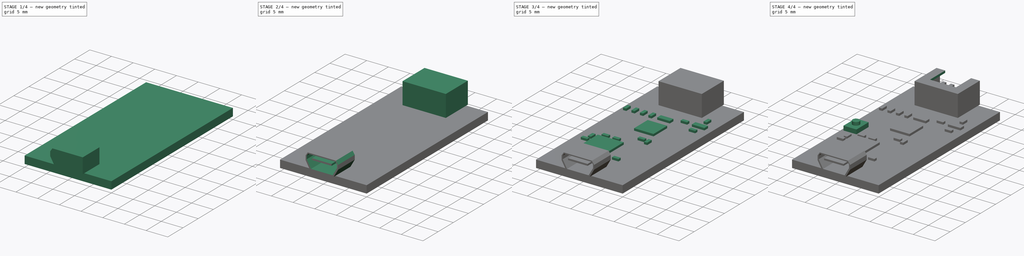
[diagram: build sequence overview — one tinted view per stage of 4, left to right]
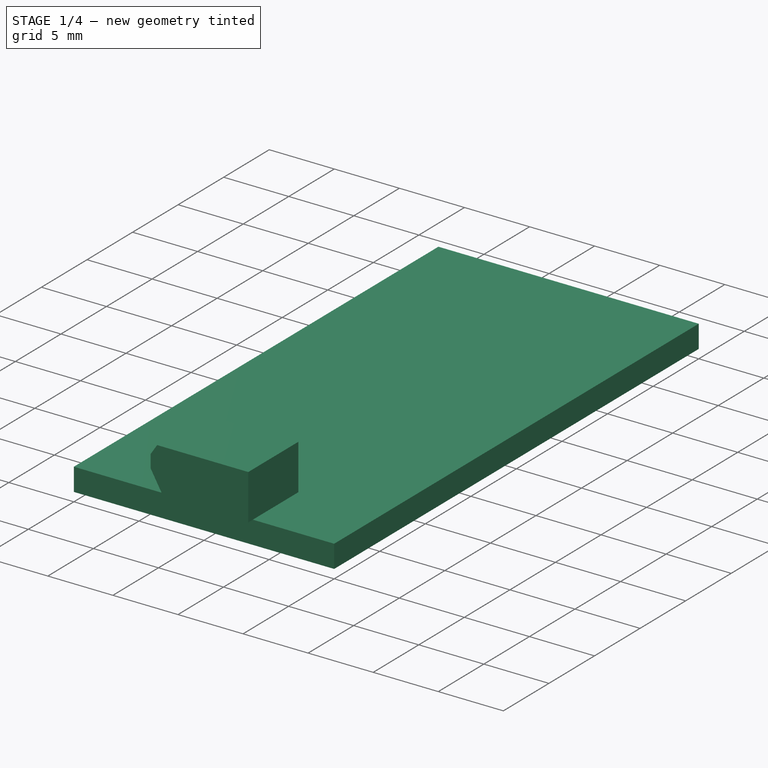
[diagram: stage 1 of 4 — iso view after this stage's code; geometry added in this stage tinted green]
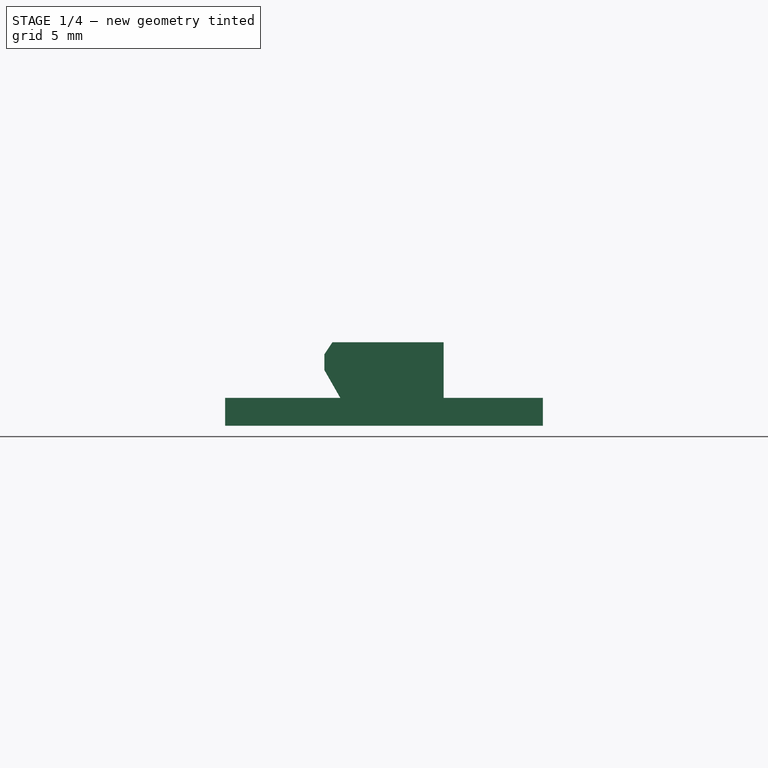
[diagram: stage 1 of 4 — front view after this stage's code; geometry added in this stage tinted green]
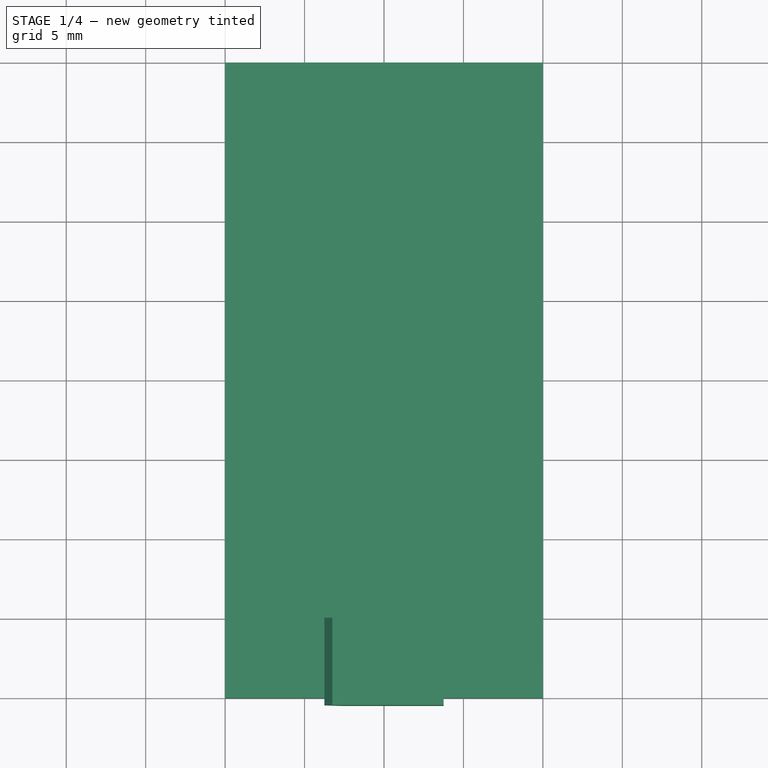
[diagram: stage 1 of 4 — top view after this stage's code; geometry added in this stage tinted green]
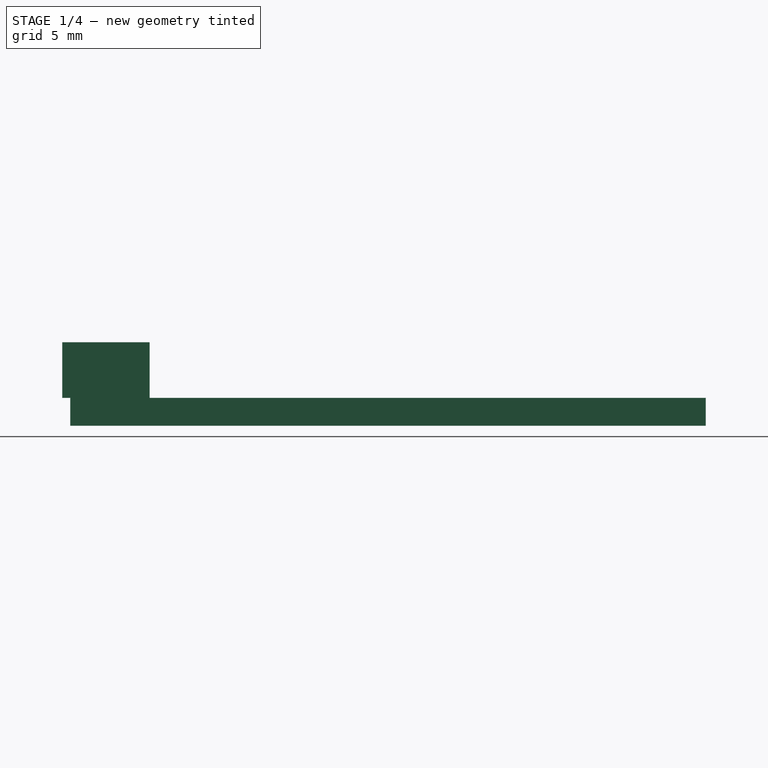
[diagram: stage 1 of 4 — right view after this stage's code; geometry added in this stage tinted green]
FCSTD DOCUMENT  (FreeCAD 1.0R39109 (Git))
Label: serial_ld
License: All rights reserved
LicenseURL: http://en.wikipedia.org/wiki/All_rights_reserved
objects: Sketcher::SketchObject×11, PartDesign::Pad×7, PartDesign::Pocket×4, PartDesign::Mirrored×1, PartDesign::Body×1
note: 58 computed .brp shape members not serialized (recipe doc carries the construction recipe); baked Part::Feature solids carry a one-line shape summary decoded from their .brp

FEATURE [Sketcher::SketchObject] Sketch
  ArcFitTolerance = 1e-06
  AttachmentSupport = -> [XY_Plane]
  FullyConstrained = true
  MakeInternals = false
  MapMode = 5
  sketch-geometry (5):
    g0: LineSegment StartX=-10 StartY=20 StartZ=0 EndX=-10 EndY=-20 EndZ=0
    g1: LineSegment StartX=-10 StartY=-20 StartZ=0 EndX=10 EndY=-20 EndZ=0
    g2: LineSegment StartX=10 StartY=-20 StartZ=0 EndX=10 EndY=20 EndZ=0
    g3: LineSegment StartX=10 StartY=20 StartZ=0 EndX=-10 EndY=20 EndZ=0
    g4: GeomPoint [constr] X=0 Y=0 Z=0
  constraints (12):
    c: Coincident(g0,g1)
    c: Coincident(g1,g2)
    c: Coincident(g2,g3)
    c: Coincident(g3,g0)
    c: Vertical(g0)
    c: Vertical(g2)
    c: Horizontal(g1)
    c: Horizontal(g3)
    c: Symmetric(g2,g0,g4)
    c: Coincident(g4,g-1)
    c: DistanceX(g3,g3) = 20
    c: DistanceY(g2,g2) = 40
FEATURE [PartDesign::Pad] Pad  label="PCBPad"
  Direction = (0,0,1)
  Length = 1.75
  Length2 = 10
  Profile = -> Sketch
  ReferenceAxis = -> Sketch [N_Axis]
  Refine = true
  Suppressed = false
  Type = 0
FEATURE [Sketcher::SketchObject] Sketch001
  ArcFitTolerance = 1e-06
  AttachmentSupport = -> [Pad]
  ExternalGeometry = -> [Pad]
  FullyConstrained = true
  MakeInternals = false
  MapMode = 5
  Placement = pos=(0,0,1.75) rot=(0,0,1;0rad)
  sketch-geometry (5):
    g0: LineSegment StartX=-3.75 StartY=-15 StartZ=0 EndX=-3.75 EndY=-20.5 EndZ=0
    g1: LineSegment StartX=-3.75 StartY=-20.5 StartZ=0 EndX=3.75 EndY=-20.5 EndZ=0
    g2: LineSegment StartX=3.75 StartY=-20.5 StartZ=0 EndX=3.75 EndY=-15 EndZ=0
    g3: LineSegment StartX=3.75 StartY=-15 StartZ=0 EndX=-3.75 EndY=-15 EndZ=0
    g4: GeomPoint [constr] X=0 Y=-17.75 Z=0
  constraints (13):
    c: Coincident(g0,g1)
    c: Coincident(g1,g2)
    c: Coincident(g2,g3)
    c: Coincident(g3,g0)
    c: Vertical(g0)
    c: Vertical(g2)
    c: Horizontal(g1)
    c: Horizontal(g3)
    c: Symmetric(g2,g0,g4)
    c: PointOnObject(g4,g-2)
    c: DistanceX(g3,g3) = 7.5
    c: DistanceY(g2,g2) = 5.5
    c: DistanceY(g1,g-3) = 0.5
FEATURE [PartDesign::Pad] Pad001  label="USBPad"
  BaseFeature = -> Pad
  Direction = (0,0,1)
  Length = 3.5
  Length2 = 10
  Profile = -> Sketch001
  ReferenceAxis = -> Sketch001 [N_Axis]
  Refine = true
  Suppressed = false
  Type = 0
FEATURE [Sketcher::SketchObject] Sketch002
  ArcFitTolerance = 1e-06
  AttachmentSupport = -> [Pad001]
  ExternalGeometry = -> [Pad001]
  FullyConstrained = true
  MakeInternals = false
  MapMode = 5
  Placement = pos=(0,-20.5,0) rot=(1,0,0;1.5708rad)
  sketch-geometry (6):
    g0: LineSegment StartX=-3.75 StartY=5.25 StartZ=0 EndX=-3.75 EndY=4.5 EndZ=0
    g1: LineSegment StartX=-3.75 StartY=4.5 StartZ=0 EndX=-3.25 EndY=5.25 EndZ=0
    g2: LineSegment StartX=-3.25 StartY=5.25 StartZ=0 EndX=-3.75 EndY=5.25 EndZ=0
    g3: LineSegment StartX=-3.75 StartY=1.75 StartZ=0 EndX=-3.75 EndY=3.5 EndZ=0
    g4: LineSegment StartX=-3.75 StartY=3.5 StartZ=0 EndX=-2.75 EndY=1.75 EndZ=0
    g5: LineSegment StartX=-2.75 StartY=1.75 StartZ=0 EndX=-3.75 EndY=1.75 EndZ=0
  constraints (16):
    c: Coincident(g-3,g0)
    c: Vertical(g0)
    c: Coincident(g0,g1)
    c: PointOnObject(g1,g-3)
    c: Coincident(g1,g2)
    c: Coincident(g2,g0)
    c: Coincident(g-4,g3)
    c: Vertical(g3)
    c: Coincident(g3,g4)
    c: PointOnObject(g4,g-4)
    c: Coincident(g4,g5)
    c: Coincident(g5,g3)
    c: DistanceX(g1,g4) = 0.5
    c: DistanceX(g2,g2) = 0.5
    c: DistanceY(g3,g0) = 1
    c: DistanceY(g0,g0) = 0.75
FEATURE [PartDesign::Pocket] Pocket  label="USBPocket"
  BaseFeature = -> Pad001
  Direction = (0,1,-2e-16)
  Length = 5
  Length2 = 5
  Profile = -> Sketch002
  ReferenceAxis = -> Sketch002 [N_Axis]
  Refine = true
  Suppressed = false
  Type = 2
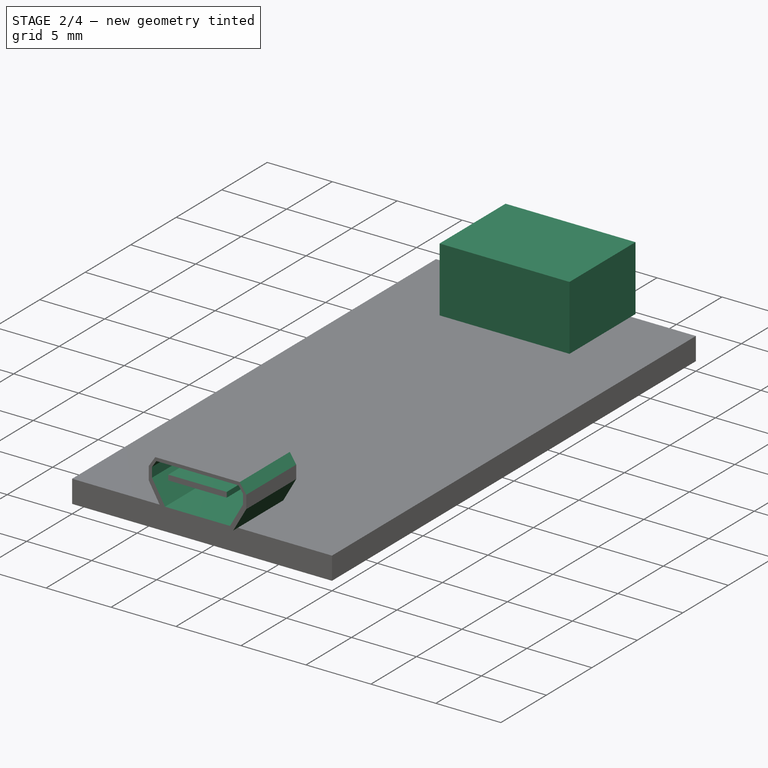
[diagram: stage 2 of 4 — iso view after this stage's code; geometry added in this stage tinted green]
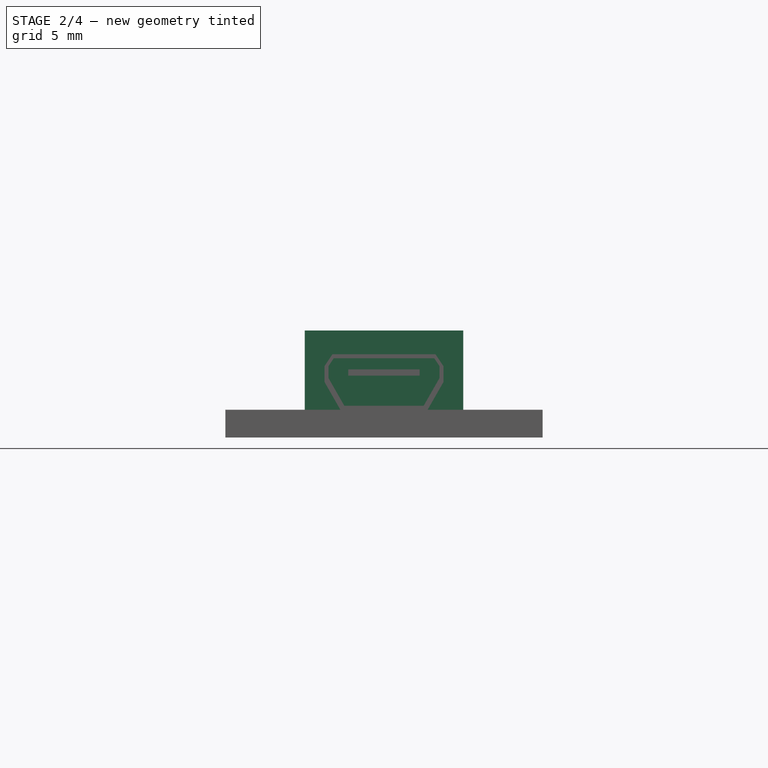
[diagram: stage 2 of 4 — front view after this stage's code; geometry added in this stage tinted green]
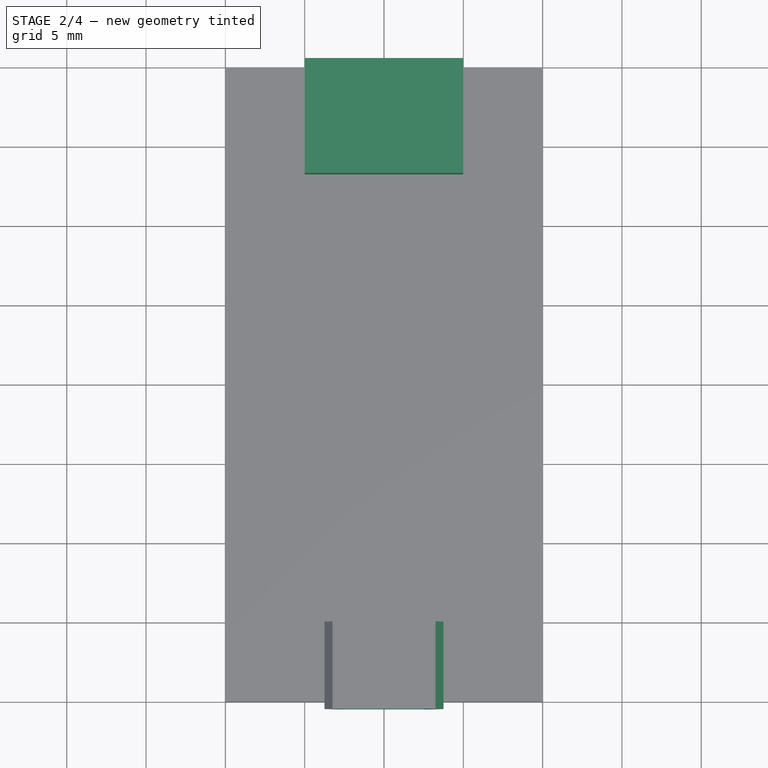
[diagram: stage 2 of 4 — top view after this stage's code; geometry added in this stage tinted green]
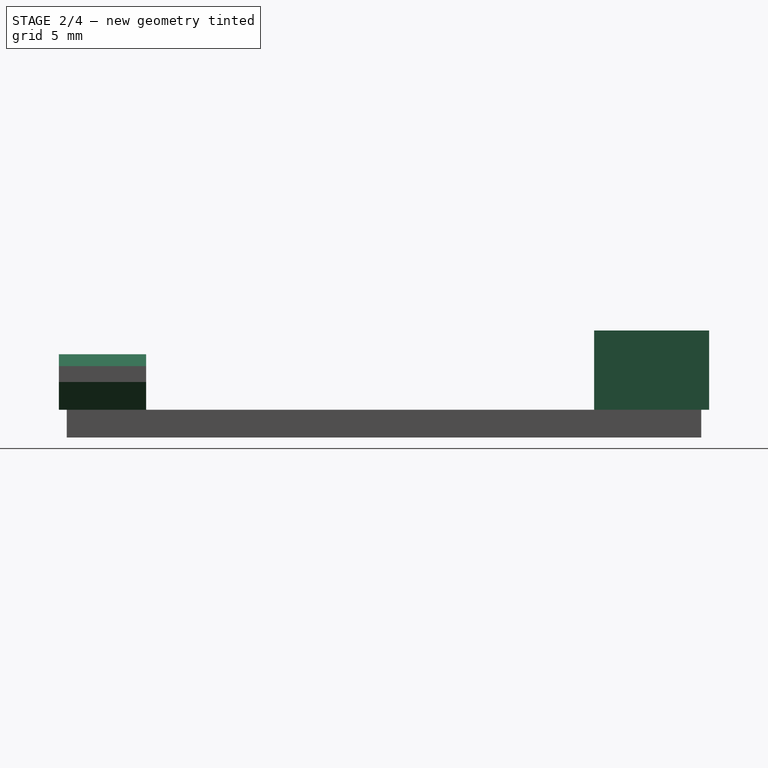
[diagram: stage 2 of 4 — right view after this stage's code; geometry added in this stage tinted green]
FEATURE [PartDesign::Mirrored] Mirrored  label="USBPockterMirro"
  BaseFeature = -> Pocket
  MirrorPlane = -> YZ_Plane
  Originals = -> [Pocket]
  Refine = true
  Suppressed = false
  TransformMode = 0
FEATURE [Sketcher::SketchObject] Sketch003
  ArcFitTolerance = 1e-06
  AttachmentSupport = -> [Mirrored]
  ExternalGeometry = -> [Mirrored]
  FullyConstrained = true
  MakeInternals = false
  MapMode = 5
  Placement = pos=(0,-20.5,0) rot=(1,0,0;1.5708rad)
  sketch-geometry (12):
    g0: LineSegment StartX=-3.16667 StartY=5 StartZ=0 EndX=-3.5 EndY=4.5 EndZ=0
    g1: LineSegment StartX=-3.5 StartY=4.5 StartZ=0 EndX=-3.5 EndY=3.75 EndZ=0
    g2: LineSegment StartX=-3.5 StartY=3.75 StartZ=0 EndX=-2.5 EndY=2 EndZ=0
    g3: LineSegment StartX=-2.5 StartY=2 StartZ=0 EndX=2.5 EndY=2 EndZ=0
    g4: LineSegment StartX=2.5 StartY=2 StartZ=0 EndX=3.5 EndY=3.75 EndZ=0
    g5: LineSegment StartX=3.5 StartY=3.75 StartZ=0 EndX=3.5 EndY=4.5 EndZ=0
    g6: LineSegment StartX=3.5 StartY=4.5 StartZ=0 EndX=3.16667 EndY=5 EndZ=0
    g7: LineSegment StartX=3.16667 StartY=5 StartZ=0 EndX=-3.16667 EndY=5 EndZ=0
    g8: LineSegment StartX=-2.25 StartY=4.3 StartZ=0 EndX=-2.25 EndY=3.9 EndZ=0
    g9: LineSegment StartX=-2.25 StartY=3.9 StartZ=0 EndX=2.25 EndY=3.9 EndZ=0
    g10: LineSegment StartX=2.25 StartY=3.9 StartZ=0 EndX=2.25 EndY=4.3 EndZ=0
    g11: LineSegment StartX=2.25 StartY=4.3 StartZ=0 EndX=-2.25 EndY=4.3 EndZ=0
  constraints (33):
    c: Coincident(g0,g1)
    c: Coincident(g1,g2)
    c: Coincident(g2,g3)
    c: Coincident(g3,g4)
    c: Coincident(g4,g5)
    c: Coincident(g5,g6)
    c: Coincident(g6,g7)
    c: Coincident(g7,g0)
    c: Horizontal(g0,g5)
    c: Horizontal(g1,g4)
    c: Vertical(g5)
    c: Symmetric(g6,g0,g-2)
    c: Vertical(g1)
    c: Symmetric(g3,g2,g-2)
    c: Equal(g4,g2)
    c: DistanceY(g6,g-7) = 0.25
    c: DistanceX(g5,g-8) = 0.25
    c: DistanceX(g3,g-9) = 0.25
    c: Parallel(g6,g-7)
    c: Parallel(g2,g-6)
    c: Horizontal(g0,g-5)
    c: DistanceY(g-9,g4) = 0.25
    c: Coincident(g8,g9)
    c: Coincident(g9,g10)
    c: Coincident(g10,g11)
    c: Coincident(g11,g8)
    c: Vertical(g8)
    c: Vertical(g10)
    c: Horizontal(g9)
    c: Symmetric(g10,g8,g-2)
    c: DistanceX(g11,g11) = 4.5
    c: DistanceY(g10,g10) = 0.4
    c: DistanceY(g10,g6) = 0.7
FEATURE [PartDesign::Pocket] Pocket001  label="USBConnPocket"
  BaseFeature = -> Mirrored
  Direction = (0,1,-2e-16)
  Length = 5
  Length2 = 5
  Profile = -> Sketch003
  ReferenceAxis = -> Sketch003 [N_Axis]
  Refine = true
  Suppressed = false
  Type = 0
FEATURE [Sketcher::SketchObject] Sketch004
  ArcFitTolerance = 1e-06
  AttachmentSupport = -> [Pocket001]
  ExternalGeometry = -> [Pocket001]
  FullyConstrained = true
  MakeInternals = false
  MapMode = 5
  Placement = pos=(0,0,1.75) rot=(0,0,1;0rad)
  sketch-geometry (5):
    g0: LineSegment StartX=-5 StartY=20.5 StartZ=0 EndX=-5 EndY=13.25 EndZ=0
    g1: LineSegment StartX=-5 StartY=13.25 StartZ=0 EndX=5 EndY=13.25 EndZ=0
    g2: LineSegment StartX=5 StartY=13.25 StartZ=0 EndX=5 EndY=20.5 EndZ=0
    g3: LineSegment StartX=5 StartY=20.5 StartZ=0 EndX=-5 EndY=20.5 EndZ=0
    g4: GeomPoint [constr] X=0 Y=16.875 Z=0
  constraints (13):
    c: Coincident(g0,g1)
    c: Coincident(g1,g2)
    c: Coincident(g2,g3)
    c: Coincident(g3,g0)
    c: Vertical(g0)
    c: Vertical(g2)
    c: Horizontal(g1)
    c: Horizontal(g3)
    c: Symmetric(g2,g0,g4)
    c: PointOnObject(g4,g-2)
    c: DistanceX(g1,g1) = 10
    c: DistanceY(g2,g2) = 7.25
    c: DistanceY(g-3,g2) = 0.5
FEATURE [PartDesign::Pad] Pad002  label="ConnectorPad"
  BaseFeature = -> Pocket001
  Direction = (0,0,1)
  Length = 5
  Length2 = 10
  Profile = -> Sketch004
  ReferenceAxis = -> Sketch004 [N_Axis]
  Refine = true
  Suppressed = false
  Type = 0
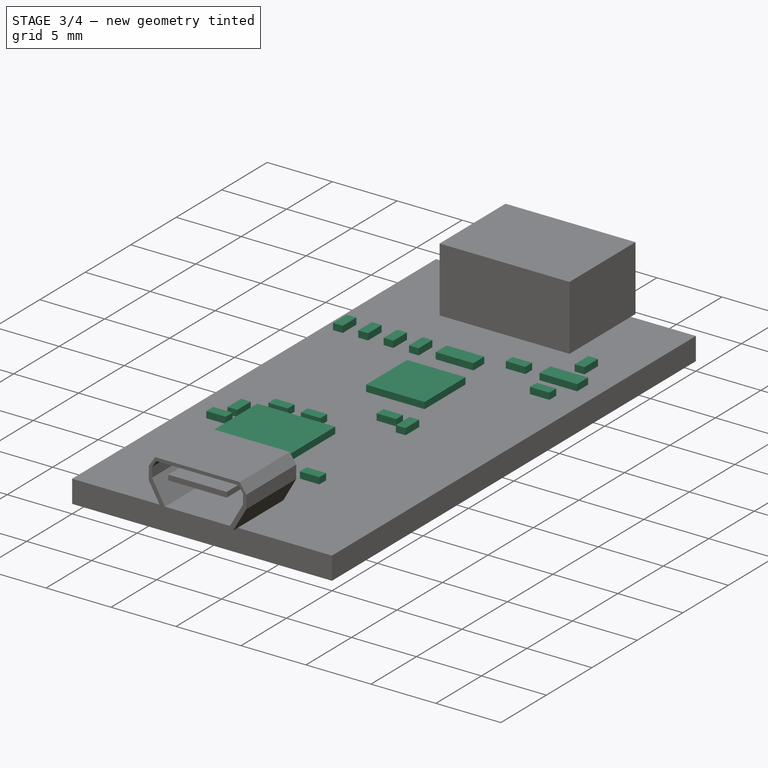
[diagram: stage 3 of 4 — iso view after this stage's code; geometry added in this stage tinted green]
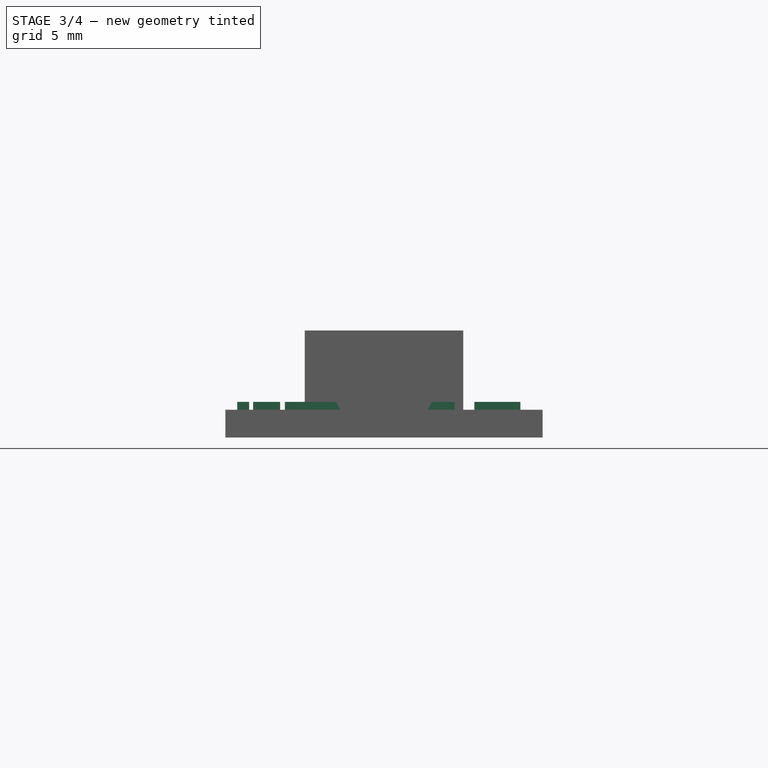
[diagram: stage 3 of 4 — front view after this stage's code; geometry added in this stage tinted green]
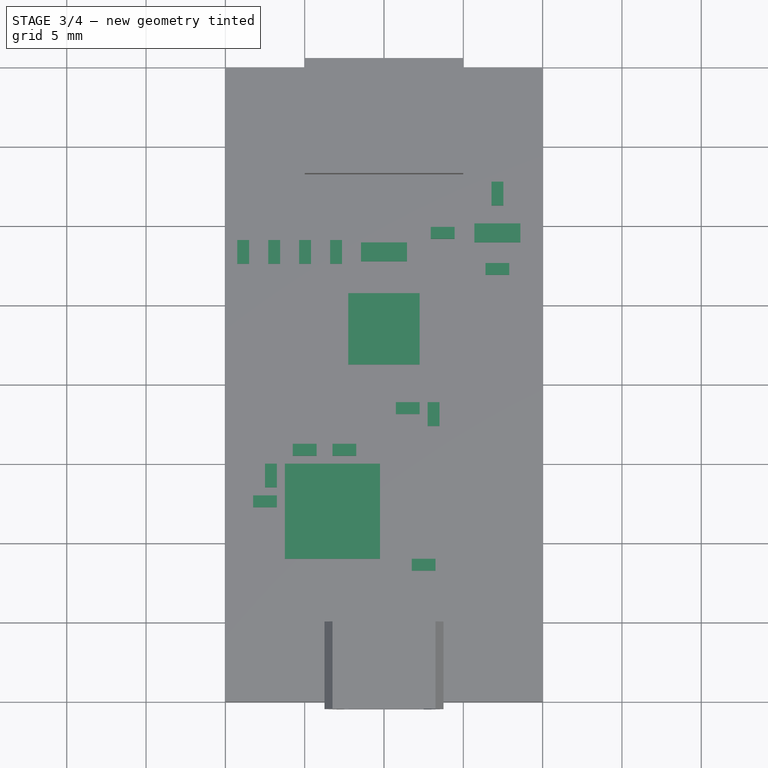
[diagram: stage 3 of 4 — top view after this stage's code; geometry added in this stage tinted green]
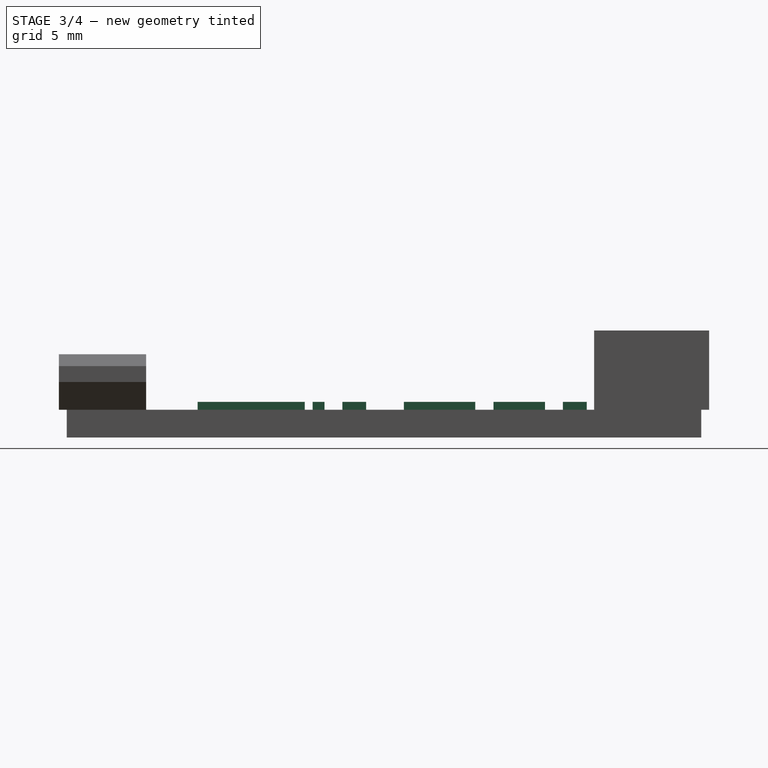
[diagram: stage 3 of 4 — right view after this stage's code; geometry added in this stage tinted green]
FEATURE [Sketcher::SketchObject] Sketch005
  ArcFitTolerance = 1e-06
  AttachmentSupport = -> [Pad002]
  ExternalGeometry = -> [Pad002]
  FullyConstrained = true
  MakeInternals = false
  MapMode = 5
  Placement = pos=(0,20.5,0) rot=(0,0.707107,0.707107;3.14159rad)
  sketch-geometry (7):
    g0: LineSegment StartX=-4.2 StartY=6.25 StartZ=0 EndX=-4.2 EndY=2.25 EndZ=0
    g1: LineSegment StartX=-4.2 StartY=2.25 StartZ=0 EndX=4.2 EndY=2.25 EndZ=0
    g2: LineSegment StartX=4.2 StartY=2.25 StartZ=0 EndX=4.2 EndY=6.25 EndZ=0
    g3: LineSegment StartX=4.2 StartY=6.25 StartZ=0 EndX=-4.2 EndY=6.25 EndZ=0
    g4: GeomPoint [constr] X=1e-16 Y=4.25 Z=0
    g5: GeomPoint X=5 Y=4.25 Z=0
    g6: GeomPoint X=4.2 Y=4.25 Z=0
  constraints (14):
    c: Coincident(g0,g1)
    c: Coincident(g1,g2)
    c: Coincident(g2,g3)
    c: Coincident(g3,g0)
    c: Vertical(g0)
    c: Vertical(g2)
    c: Horizontal(g1)
    c: Symmetric(g2,g0,g4)
    c: Symmetric(g2,g0,g-2)
    c: Symmetric(g-4,g-4,g5)
    c: Symmetric(g2,g2,g6)
    c: Horizontal(g6,g5)
    c: DistanceY(g-4,g1) = 0.5
    c: DistanceX(g2,g-4) = 0.8
FEATURE [PartDesign::Pocket] Pocket002  label="ConnectorPocket"
  BaseFeature = -> Pad002
  Direction = (0,-1,2e-16)
  Length = 5
  Length2 = 5
  Profile = -> Sketch005
  ReferenceAxis = -> Sketch005 [N_Axis]
  Refine = true
  Suppressed = false
  Type = 0
FEATURE [Sketcher::SketchObject] Sketch006
  ArcFitTolerance = 1e-06
  AttachmentSupport = -> [Pocket002]
  ExternalGeometry = -> [Pocket002]
  FullyConstrained = true
  MakeInternals = false
  MapMode = 5
  Placement = pos=(0,15.5,0) rot=(0,0.707107,0.707107;3.14159rad)
  sketch-geometry (27):
    g0: LineSegment StartX=-3.16 StartY=4.65 StartZ=0 EndX=-3.16 EndY=3.85 EndZ=0
    g1: LineSegment StartX=-3.16 StartY=3.85 StartZ=0 EndX=-2.36 EndY=3.85 EndZ=0
    g2: LineSegment StartX=-2.36 StartY=3.85 StartZ=0 EndX=-2.36 EndY=4.65 EndZ=0
    g3: LineSegment StartX=-2.36 StartY=4.65 StartZ=0 EndX=-3.16 EndY=4.65 EndZ=0
    g4: GeomPoint [constr] X=-2.76 Y=4.25 Z=0
    g5: LineSegment StartX=-1.32 StartY=4.65 StartZ=0 EndX=-1.32 EndY=3.85 EndZ=0
    g6: LineSegment StartX=-1.32 StartY=3.85 StartZ=0 EndX=-0.52 EndY=3.85 EndZ=0
    g7: LineSegment StartX=-0.52 StartY=3.85 StartZ=0 EndX=-0.52 EndY=4.65 EndZ=0
    g8: LineSegment StartX=-0.52 StartY=4.65 StartZ=0 EndX=-1.32 EndY=4.65 EndZ=0
    g9: GeomPoint [constr] X=-0.92 Y=4.25 Z=0
    g10: LineSegment StartX=0.52 StartY=4.65 StartZ=0 EndX=0.52 EndY=3.85 EndZ=0
    g11: LineSegment StartX=0.52 StartY=3.85 StartZ=0 EndX=1.32 EndY=3.85 EndZ=0
    g12: LineSegment StartX=1.32 StartY=3.85 StartZ=0 EndX=1.32 EndY=4.65 EndZ=0
    g13: LineSegment StartX=1.32 StartY=4.65 StartZ=0 EndX=0.52 EndY=4.65 EndZ=0
    g14: GeomPoint [constr] X=0.92 Y=4.25 Z=0
    g15: LineSegment StartX=2.36 StartY=4.65 StartZ=0 EndX=2.36 EndY=3.85 EndZ=0
    g16: LineSegment StartX=2.36 StartY=3.85 StartZ=0 EndX=3.16 EndY=3.85 EndZ=0
    g17: LineSegment StartX=3.16 StartY=3.85 StartZ=0 EndX=3.16 EndY=4.65 EndZ=0
    g18: LineSegment StartX=3.16 StartY=4.65 StartZ=0 EndX=2.36 EndY=4.65 EndZ=0
    g19: GeomPoint [constr] X=2.76 Y=4.25 Z=0
    g20: LineSegment [constr] StartX=-2.36 StartY=4.65 StartZ=0 EndX=-1.32 EndY=4.65 EndZ=0
    g21: LineSegment [constr] StartX=-0.52 StartY=4.65 StartZ=0 EndX=0.52 EndY=4.65 EndZ=0
    g22: LineSegment [constr] StartX=2.36 StartY=4.65 StartZ=0 EndX=1.32 EndY=4.65 EndZ=0
    g23: GeomPoint [constr] X=0 Y=4.65 Z=0
    g24: GeomPoint [constr] X=4.2 Y=4.25 Z=0
    g25: LineSegment [constr] StartX=3.16 StartY=4.65 StartZ=0 EndX=4.2 EndY=4.65 EndZ=0
    g26: LineSegment [constr] StartX=-3.16 StartY=4.65 StartZ=0 EndX=-4.2 EndY=4.65 EndZ=0
  constraints (66):
    c: Coincident(g0,g1)
    c: Coincident(g1,g2)
    c: Coincident(g2,g3)
    c: Coincident(g3,g0)
    c: Vertical(g0)
    c: Vertical(g2)
    c: Horizontal(g1)
    c: Horizontal(g3)
    c: Symmetric(g2,g0,g4)
    c: Coincident(g5,g6)
    c: Coincident(g6,g7)
    c: Coincident(g7,g8)
    c: Coincident(g8,g5)
    c: Vertical(g5)
    c: Vertical(g7)
    c: Horizontal(g6)
    c: Horizontal(g8)
    c: Symmetric(g7,g5,g9)
    c: Coincident(g10,g11)
    c: Coincident(g11,g12)
    c: Coincident(g12,g13)
    c: Coincident(g13,g10)
    c: Vertical(g10)
    c: Vertical(g12)
    c: Horizontal(g11)
    c: Horizontal(g13)
    c: Symmetric(g12,g10,g14)
    c: Coincident(g15,g16)
    c: Coincident(g16,g17)
    c: Coincident(g17,g18)
    c: Coincident(g18,g15)
    c: Vertical(g15)
    c: Vertical(g17)
    c: Horizontal(g16)
    c: Horizontal(g18)
    c: Symmetric(g17,g15,g19)
    c: Coincident(g20,g2)
    c: Coincident(g20,g5)
    c: Coincident(g21,g7)
    c: Coincident(g21,g10)
    c: Horizontal(g21)
    c: Coincident(g22,g15)
    c: Coincident(g22,g12)
    c: Horizontal(g22)
    c: Equal(g22,g21)
    c: Equal(g21,g20)
    c: Horizontal(g20)
    c: Equal(g2,g3)
    c: Equal(g5,g8)
    c: Equal(g10,g13)
    c: Equal(g15,g18)
    c: Equal(g15,g12)
    c: Equal(g10,g7)
    c: Equal(g2,g5)
    c: Symmetric(g7,g10,g23)
    c: PointOnObject(g23,g-2)
    c: DistanceX(g13,g13) = 0.8
    c: Symmetric(g-4,g-4,g24)
    c: Horizontal(g19,g24)
    c: Coincident(g25,g17)
    c: PointOnObject(g25,g-4)
    c: Horizontal(g25)
    c: Coincident(g26,g0)
    c: PointOnObject(g26,g-5)
    c: Horizontal(g26)
    c: Equal(g20,g26)
FEATURE [PartDesign::Pad] Pad003  label="ConnectorsPad"
  BaseFeature = -> Pocket002
  Direction = (0,1,-2e-16)
  Length = 4.5
  Length2 = 10
  Profile = -> Sketch006
  ReferenceAxis = -> Sketch006 [N_Axis]
  Refine = true
  Suppressed = false
  Type = 0
FEATURE [Sketcher::SketchObject] Sketch007
  ArcFitTolerance = 1e-06
  AttachmentSupport = -> [Pad003]
  ExternalGeometry = -> [Pad003]
  FullyConstrained = false
  MakeInternals = false
  MapMode = 5
  Placement = pos=(0,0,1.75) rot=(0,0,1;0rad)
  sketch-geometry (87):
    g0: LineSegment StartX=-6.25 StartY=-5 StartZ=0 EndX=-6.25 EndY=-11 EndZ=0
    g1: LineSegment StartX=-6.25 StartY=-11 StartZ=0 EndX=-0.25 EndY=-11 EndZ=0
    g2: LineSegment StartX=-0.25 StartY=-11 StartZ=0 EndX=-0.25 EndY=-5 EndZ=0
    g3: LineSegment StartX=-0.25 StartY=-5 StartZ=0 EndX=-6.25 EndY=-5 EndZ=0
    g4: GeomPoint [constr] X=-3.25 Y=-8 Z=0
    g5: LineSegment StartX=-2.25 StartY=5.75 StartZ=0 EndX=-2.25 EndY=1.25 EndZ=0
    g6: LineSegment StartX=-2.25 StartY=1.25 StartZ=0 EndX=2.25 EndY=1.25 EndZ=0
    g7: LineSegment StartX=2.25 StartY=1.25 StartZ=0 EndX=2.25 EndY=5.75 EndZ=0
    g8: LineSegment StartX=2.25 StartY=5.75 StartZ=0 EndX=-2.25 EndY=5.75 EndZ=0
    g9: LineSegment StartX=-9.25 StartY=9.1 StartZ=0 EndX=-9.25 EndY=7.6 EndZ=0
    g10: LineSegment StartX=-9.25 StartY=7.6 StartZ=0 EndX=-8.5 EndY=7.6 EndZ=0
    g11: LineSegment StartX=-8.5 StartY=7.6 StartZ=0 EndX=-8.5 EndY=9.1 EndZ=0
    g12: LineSegment StartX=-8.5 StartY=9.1 StartZ=0 EndX=-9.25 EndY=9.1 EndZ=0
    g13: LineSegment StartX=-7.3 StartY=9.1 StartZ=0 EndX=-7.3 EndY=7.6 EndZ=0
    g14: LineSegment StartX=-7.3 StartY=7.6 StartZ=0 EndX=-6.55 EndY=7.6 EndZ=0
    g15: LineSegment StartX=-6.55 StartY=7.6 StartZ=0 EndX=-6.55 EndY=9.1 EndZ=0
    g16: LineSegment StartX=-6.55 StartY=9.1 StartZ=0 EndX=-7.3 EndY=9.1 EndZ=0
    g17: LineSegment StartX=-5.35 StartY=9.1 StartZ=0 EndX=-5.35 EndY=7.6 EndZ=0
    g18: LineSegment StartX=-5.35 StartY=7.6 StartZ=0 EndX=-4.6 EndY=7.6 EndZ=0
    g19: LineSegment StartX=-4.6 StartY=7.6 StartZ=0 EndX=-4.6 EndY=9.1 EndZ=0
    g20: LineSegment StartX=-4.6 StartY=9.1 StartZ=0 EndX=-5.35 EndY=9.1 EndZ=0
    g21: LineSegment StartX=-3.4 StartY=9.1 StartZ=0 EndX=-3.4 EndY=7.6 EndZ=0
    g22: LineSegment StartX=-3.4 StartY=7.6 StartZ=0 EndX=-2.65 EndY=7.6 EndZ=0
    g23: LineSegment StartX=-2.65 StartY=7.6 StartZ=0 EndX=-2.65 EndY=9.1 EndZ=0
    g24: LineSegment StartX=-2.65 StartY=9.1 StartZ=0 EndX=-3.4 EndY=9.1 EndZ=0
    g25: LineSegment StartX=-1.45 StartY=8.95 StartZ=0 EndX=-1.45 EndY=7.75 EndZ=0
    g26: LineSegment StartX=-1.45 StartY=7.75 StartZ=0 EndX=1.45 EndY=7.75 EndZ=0
    g27: LineSegment StartX=1.45 StartY=7.75 StartZ=0 EndX=1.45 EndY=8.95 EndZ=0
    g28: LineSegment StartX=1.45 StartY=8.95 StartZ=0 EndX=-1.45 EndY=8.95 EndZ=0
    g29: LineSegment StartX=2.95 StartY=9.925 StartZ=0 EndX=2.95 EndY=9.175 EndZ=0
    g30: LineSegment StartX=2.95 StartY=9.175 StartZ=0 EndX=4.45 EndY=9.175 EndZ=0
    g31: LineSegment StartX=4.45 StartY=9.175 StartZ=0 EndX=4.45 EndY=9.925 EndZ=0
    g32: LineSegment StartX=4.45 StartY=9.925 StartZ=0 EndX=2.95 EndY=9.925 EndZ=0
    g33: LineSegment StartX=5.7 StartY=10.15 StartZ=0 EndX=5.7 EndY=8.95 EndZ=0
    g34: LineSegment StartX=5.7 StartY=8.95 StartZ=0 EndX=8.6 EndY=8.95 EndZ=0
    g35: LineSegment StartX=8.6 StartY=8.95 StartZ=0 EndX=8.6 EndY=10.15 EndZ=0
    g36: LineSegment StartX=8.6 StartY=10.15 StartZ=0 EndX=5.7 EndY=10.15 EndZ=0
    g37: LineSegment StartX=6.775 StartY=12.78 StartZ=0 EndX=6.775 EndY=11.28 EndZ=0
    g38: LineSegment StartX=6.775 StartY=11.28 StartZ=0 EndX=7.525 EndY=11.28 EndZ=0
    g39: LineSegment StartX=7.525 StartY=11.28 StartZ=0 EndX=7.525 EndY=12.78 EndZ=0
    g40: LineSegment StartX=7.525 StartY=12.78 StartZ=0 EndX=6.775 EndY=12.78 EndZ=0
    g41: LineSegment StartX=6.4 StartY=7.65 StartZ=0 EndX=6.4 EndY=6.9 EndZ=0
    g42: LineSegment StartX=6.4 StartY=6.9 StartZ=0 EndX=7.9 EndY=6.9 EndZ=0
    g43: LineSegment StartX=7.9 StartY=6.9 StartZ=0 EndX=7.9 EndY=7.65 EndZ=0
    g44: LineSegment StartX=7.9 StartY=7.65 StartZ=0 EndX=6.4 EndY=7.65 EndZ=0
    g45: LineSegment StartX=-5.75 StartY=-3.75 StartZ=0 EndX=-5.75 EndY=-4.5 EndZ=0
    g46: LineSegment StartX=-5.75 StartY=-4.5 StartZ=0 EndX=-4.25 EndY=-4.5 EndZ=0
    g47: LineSegment StartX=-4.25 StartY=-4.5 StartZ=0 EndX=-4.25 EndY=-3.75 EndZ=0
    g48: LineSegment StartX=-4.25 StartY=-3.75 StartZ=0 EndX=-5.75 EndY=-3.75 EndZ=0
    g49: LineSegment StartX=-3.25 StartY=-3.75 StartZ=0 EndX=-3.25 EndY=-4.5 EndZ=0
    g50: LineSegment StartX=-3.25 StartY=-4.5 StartZ=0 EndX=-1.75 EndY=-4.5 EndZ=0
    g51: LineSegment StartX=-1.75 StartY=-4.5 StartZ=0 EndX=-1.75 EndY=-3.75 EndZ=0
    g52: LineSegment StartX=-1.75 StartY=-3.75 StartZ=0 EndX=-3.25 EndY=-3.75 EndZ=0
    g53: LineSegment StartX=1.75 StartY=-11 StartZ=0 EndX=1.75 EndY=-11.75 EndZ=0
    g54: LineSegment StartX=1.75 StartY=-11.75 StartZ=0 EndX=3.25 EndY=-11.75 EndZ=0
    g55: LineSegment StartX=3.25 StartY=-11.75 StartZ=0 EndX=3.25 EndY=-11 EndZ=0
    g56: LineSegment StartX=3.25 StartY=-11 StartZ=0 EndX=1.75 EndY=-11 EndZ=0
    g57: GeomPoint X=-2.65 Y=8.35 Z=0
    g58: GeomPoint X=-1.45 Y=8.35 Z=0
    g59: LineSegment [constr] StartX=-8.5 StartY=9.1 StartZ=0 EndX=-7.3 EndY=9.1 EndZ=0
    g60: LineSegment [constr] StartX=-6.55 StartY=9.1 StartZ=0 EndX=-5.35 EndY=9.1 EndZ=0
    g61: LineSegment [constr] StartX=-4.6 StartY=9.1 StartZ=0 EndX=-3.4 EndY=9.1 EndZ=0
    g62: LineSegment [constr] StartX=-2.65 StartY=8.35 StartZ=0 EndX=-1.45 EndY=8.35 EndZ=0
    g63: GeomPoint [constr] X=7.15 Y=10.15 Z=0
    g64: GeomPoint [constr] X=7.15 Y=11.28 Z=0
    g65: GeomPoint [constr] X=4.45 Y=9.55 Z=0
    g66: GeomPoint [constr] X=5.7 Y=9.55 Z=0
    g67: GeomPoint [constr] X=7.15 Y=7.65 Z=0
    g68: GeomPoint [constr] X=0 Y=5.75 Z=0
    g69: LineSegment StartX=-7.5 StartY=-5 StartZ=0 EndX=-7.5 EndY=-6.5 EndZ=0
    g70: LineSegment StartX=-7.5 StartY=-6.5 StartZ=0 EndX=-6.75 EndY=-6.5 EndZ=0
    g71: LineSegment StartX=-6.75 StartY=-6.5 StartZ=0 EndX=-6.75 EndY=-5 EndZ=0
    g72: LineSegment StartX=-6.75 StartY=-5 StartZ=0 EndX=-7.5 EndY=-5 EndZ=0
    g73: LineSegment StartX=-8.25 StartY=-7 StartZ=0 EndX=-8.25 EndY=-7.75 EndZ=0
    g74: LineSegment StartX=-8.25 StartY=-7.75 StartZ=0 EndX=-6.75 EndY=-7.75 EndZ=0
    g75: LineSegment StartX=-6.75 StartY=-7.75 StartZ=0 EndX=-6.75 EndY=-7 EndZ=0
    g76: LineSegment StartX=-6.75 StartY=-7 StartZ=0 EndX=-8.25 EndY=-7 EndZ=0
    g77: LineSegment StartX=0.75 StartY=-1.125 StartZ=0 EndX=0.75 EndY=-1.875 EndZ=0
    g78: LineSegment StartX=0.75 StartY=-1.875 StartZ=0 EndX=2.25 EndY=-1.875 EndZ=0
    g79: LineSegment StartX=2.25 StartY=-1.875 StartZ=0 EndX=2.25 EndY=-1.125 EndZ=0
    g80: LineSegment StartX=2.25 StartY=-1.125 StartZ=0 EndX=0.75 EndY=-1.125 EndZ=0
    g81: LineSegment StartX=2.75 StartY=-1.125 StartZ=0 EndX=2.75 EndY=-2.625 EndZ=0
    g82: LineSegment StartX=2.75 StartY=-2.625 StartZ=0 EndX=3.5 EndY=-2.625 EndZ=0
    g83: LineSegment StartX=3.5 StartY=-2.625 StartZ=0 EndX=3.5 EndY=-1.125 EndZ=0
    g84: LineSegment StartX=3.5 StartY=-1.125 StartZ=0 EndX=2.75 EndY=-1.125 EndZ=0
    g85: LineSegment [constr] StartX=-0.366935 StartY=-5 StartZ=0 EndX=-0.366935 EndY=1.25 EndZ=0
    g86: GeomPoint [constr] X=-0.366935 Y=-1.875 Z=0
  constraints (236):
    c: Coincident(g0,g1)
    c: Coincident(g1,g2)
    c: Coincident(g2,g3)
    c: Coincident(g3,g0)
    c: Vertical(g0)
    c: Vertical(g2)
    c: Horizontal(g1)
    c: Horizontal(g3)
    c: Symmetric(g2,g0,g4)
    c: Coincident(g5,g6)
    c: Coincident(g6,g7)
    c: Coincident(g7,g8)
    c: Coincident(g8,g5)
    c: Vertical(g5)
    c: Vertical(g7)
    c: Horizontal(g6)
    c: Horizontal(g8)
    c: Coincident(g9,g10)
    c: Coincident(g10,g11)
    c: Coincident(g11,g12)
    c: Coincident(g12,g9)
    c: Vertical(g9)
    c: Vertical(g11)
    c: Horizontal(g10)
    c: Horizontal(g12)
    c: Coincident(g13,g14)
    c: Coincident(g14,g15)
    c: Coincident(g15,g16)
    c: Coincident(g16,g13)
    c: Vertical(g13)
    c: Vertical(g15)
    c: Horizontal(g14)
    c: Horizontal(g16)
    c: Coincident(g17,g18)
    c: Coincident(g18,g19)
    c: Coincident(g19,g20)
    c: Coincident(g20,g17)
    c: Vertical(g17)
    c: Vertical(g19)
    c: Horizontal(g18)
    c: Horizontal(g20)
    c: Coincident(g21,g22)
    c: Coincident(g22,g23)
    c: Coincident(g23,g24)
    c: Coincident(g24,g21)
    c: Vertical(g21)
    c: Vertical(g23)
    c: Horizontal(g22)
    c: Horizontal(g24)
    c: Coincident(g25,g26)
    c: Coincident(g26,g27)
    c: Coincident(g27,g28)
    c: Coincident(g28,g25)
    c: Vertical(g25)
    c: Vertical(g27)
    c: Horizontal(g26)
    c: Coincident(g29,g30)
    c: Coincident(g30,g31)
    c: Coincident(g31,g32)
    c: Coincident(g32,g29)
    c: Vertical(g29)
    c: Vertical(g31)
    c: Horizontal(g30)
    c: Horizontal(g32)
    c: Coincident(g33,g34)
    c: Coincident(g34,g35)
    c: Coincident(g35,g36)
    c: Coincident(g36,g33)
    c: Vertical(g33)
    c: Vertical(g35)
    c: Horizontal(g34)
    c: Horizontal(g36)
    c: Coincident(g37,g38)
    c: Coincident(g38,g39)
    c: Coincident(g39,g40)
    c: Coincident(g40,g37)
    c: Vertical(g37)
    c: Vertical(g39)
    c: Horizontal(g38)
    c: Horizontal(g40)
    c: Coincident(g41,g42)
    c: Coincident(g42,g43)
    c: Coincident(g43,g44)
    c: Coincident(g44,g41)
    c: Vertical(g41)
    c: Vertical(g43)
    c: Horizontal(g42)
    c: Horizontal(g44)
    c: Coincident(g45,g46)
    c: Coincident(g46,g47)
    c: Coincident(g47,g48)
    c: Coincident(g48,g45)
    c: Vertical(g45)
    c: Vertical(g47)
    c: Horizontal(g46)
    c: Horizontal(g48)
    c: Coincident(g49,g50)
    c: Coincident(g50,g51)
    c: Coincident(g51,g52)
    c: Coincident(g52,g49)
    c: Vertical(g49)
    c: Vertical(g51)
    c: Horizontal(g50)
    c: Horizontal(g52)
    c: Coincident(g53,g54)
    c: Coincident(g54,g55)
    c: Coincident(g55,g56)
    c: Coincident(g56,g53)
    c: Vertical(g53)
    c: Vertical(g55)
    c: Horizontal(g54)
    c: Horizontal(g56)
    c: Horizontal(g10,g13)
    c: Horizontal(g13,g17)
    c: Horizontal(g17,g21)
    c: Symmetric(g23,g23,g57)
    c: Symmetric(g25,g25,g58)
    c: Horizontal(g57,g58)
    c: Equal(g11,g13)
    c: Equal(g13,g17)
    c: Equal(g17,g21)
    c: Equal(g24,g20)
    c: Equal(g20,g16)
    c: Equal(g16,g12)
    c: DistanceY(g9,g9) = 1.5
    c: DistanceX(g12,g12) = 0.75
    c: Coincident(g59,g11)
    c: Coincident(g59,g13)
    c: Coincident(g60,g15)
    c: Coincident(g60,g17)
    c: Coincident(g61,g19)
    c: Coincident(g61,g21)
    c: Coincident(g62,g57)
    c: Coincident(g62,g58)
    c: Equal(g62,g61)
    c: Equal(g61,g60)
    c: Equal(g60,g59)
    c: DistanceX(g-3,g9) = 0.75
    c: DistanceX(g59,g59) = 1.2
    c: Symmetric(g27,g25,g-2)
    c: DistanceY(g27,g27) = 1.2
    c: Equal(g27,g33)
    c: Equal(g28,g36)
    c: Equal(g29,g24)
    c: Equal(g32,g23)
    c: Equal(g44,g32)
    c: Equal(g41,g31)
    c: Horizontal(g33,g27)
    c: Symmetric(g36,g36,g63)
    c: Symmetric(g38,g38,g64)
    c: Vertical(g64,g63)
    c: Symmetric(g31,g31,g65)
    c: Symmetric(g33,g33,g66)
    c: Horizontal(g66,g65)
    c: DistanceX(g31,g33) = 1.25
    c: DistanceY(g63,g64) = 1.13
    c: DistanceX(g27,g29) = 1.5
    c: Equal(g37,g32)
    c: Equal(g31,g38)
    c: Symmetric(g44,g44,g67)
    c: Vertical(g67,g63)
    c: DistanceY(g43,g34) = 1.3
    c: Equal(g7,g8)
    c: DistanceY(g7,g7) = 4.5
    c: Symmetric(g8,g8,g68)
    c: PointOnObject(g68,g-2)
    c: Equal(g2,g3)
    c: DistanceY(g2,g2) = 6
    c: Horizontal(g53,g1)
    c: Equal(g55,g41)
    c: Equal(g42,g56)
    c: Vertical(g-4,g4)
    c: DistanceY(g-4,g1) = 4
    c: DistanceX(g1,g53) = 2
    c: Equal(g56,g52)
    c: Equal(g48,g52)
    c: Equal(g47,g49)
    c: Horizontal(g49,g47)
    c: Equal(g47,g55)
    c: DistanceY(g2,g50) = 0.5
    c: Vertical(g4,g49)
    c: DistanceX(g47,g49) = 1
    c: DistanceY(g7,g26) = 2
    c: DistanceY(g-1,g6) = 1.25
    c: Coincident(g69,g70)
    c: Coincident(g70,g71)
    c: Coincident(g71,g72)
    c: Coincident(g72,g69)
    c: Vertical(g69)
    c: Vertical(g71)
    c: Horizontal(g70)
    c: Horizontal(g72)
    c: Coincident(g73,g74)
    c: Coincident(g74,g75)
    c: Coincident(g75,g76)
    c: Coincident(g76,g73)
    c: Vertical(g73)
    c: Vertical(g75)
    c: Horizontal(g74)
    c: Horizontal(g76)
    c: Equal(g71,g46)
    c: Equal(g46,g74)
    c: Equal(g72,g45)
    c: Equal(g45,g73)
    c: Horizontal(g71,g0)
    c: Vertical(g75,g70)
    c: DistanceX(g75,g0) = 0.5
    c: DistanceY(g75,g70) = 0.5
    c: Coincident(g77,g78)
    c: Coincident(g78,g79)
    c: Coincident(g79,g80)
    c: Coincident(g80,g77)
    c: Vertical(g77)
    c: Vertical(g79)
    c: Horizontal(g78)
    c: Horizontal(g80)
    c: Coincident(g81,g82)
    c: Coincident(g82,g83)
    c: Coincident(g83,g84)
    c: Coincident(g84,g81)
    c: Vertical(g81)
    c: Vertical(g83)
    c: Horizontal(g82)
    c: Horizontal(g84)
    c: Equal(g81,g78)
    c: Equal(g79,g84)
    c: Horizontal(g81,g79)
    c: Equal(g51,g77)
    c: DistanceX(g79,g81) = 0.5
    c: PointOnObject(g85,g6)
    c: Vertical(g85)
    c: Symmetric(g85,g85,g86)
    c: Horizontal(g77,g86)
    c: Equal(g80,g52)
    c: PointOnObject(g85,g3)
    c: Vertical(g79,g6)
FEATURE [PartDesign::Pad] Pad004  label="ComponentsPad"
  BaseFeature = -> Pad003
  Direction = (0,0,1)
  Length = 0.5
  Length2 = 10
  Profile = -> Sketch007
  ReferenceAxis = -> Sketch007 [N_Axis]
  Refine = true
  Suppressed = false
  Type = 0
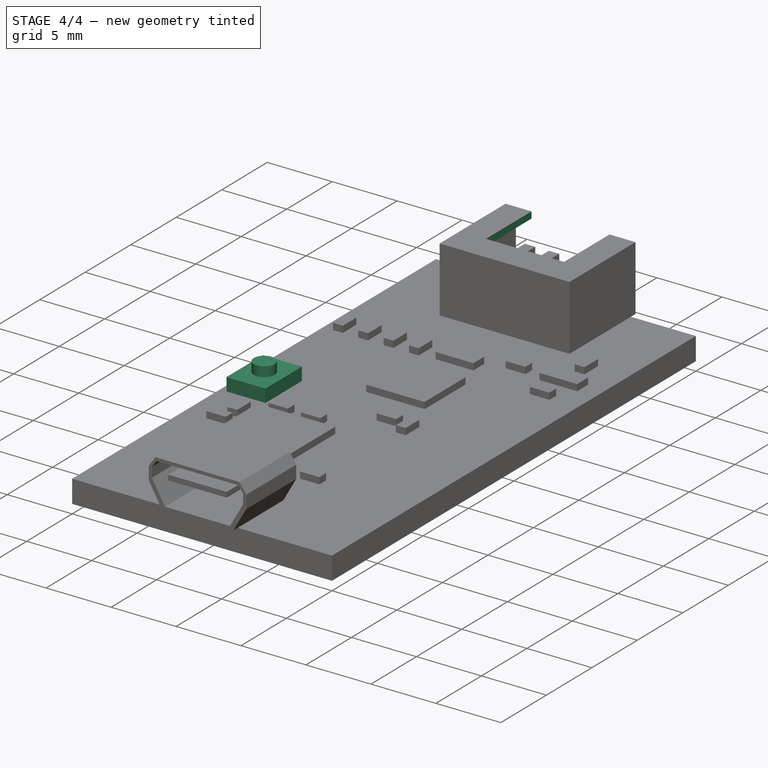
[diagram: stage 4 of 4 — iso view after this stage's code; geometry added in this stage tinted green]
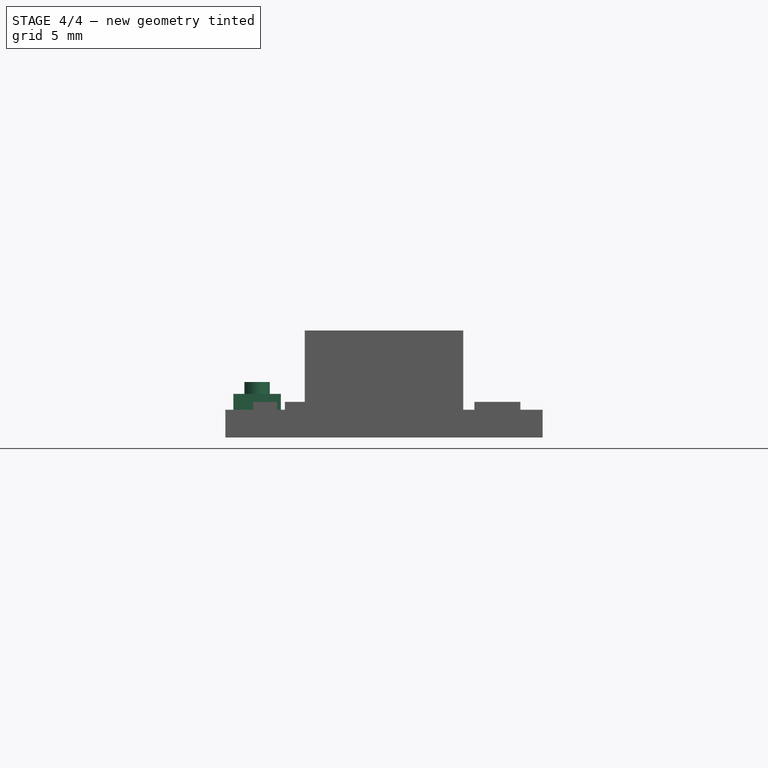
[diagram: stage 4 of 4 — front view after this stage's code; geometry added in this stage tinted green]
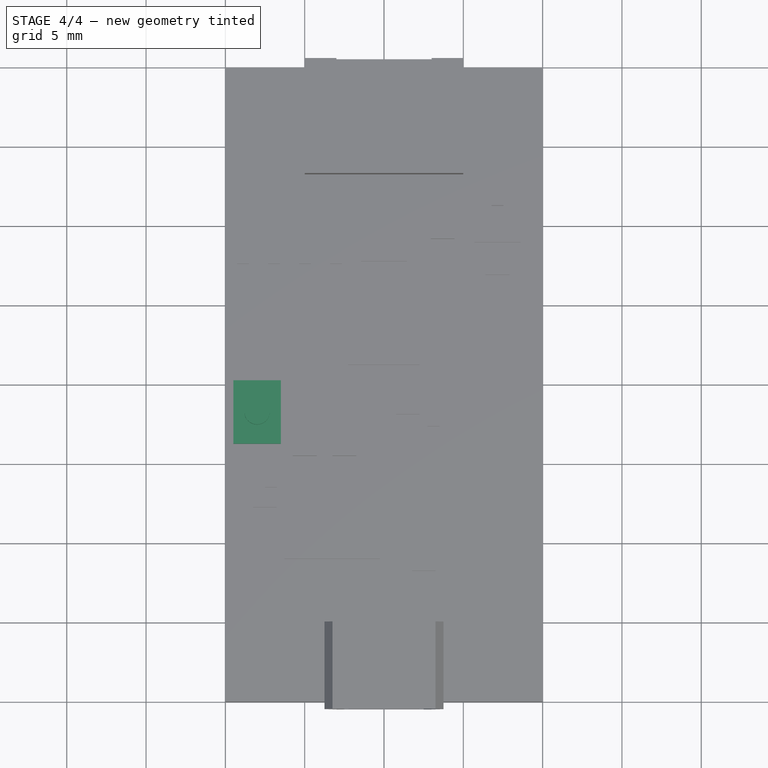
[diagram: stage 4 of 4 — top view after this stage's code; geometry added in this stage tinted green]
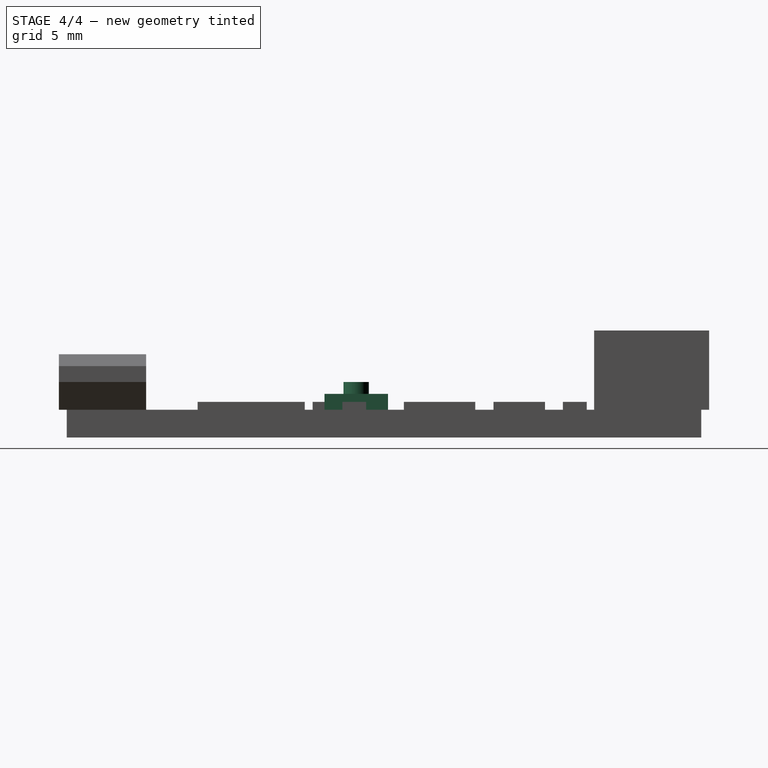
[diagram: stage 4 of 4 — right view after this stage's code; geometry added in this stage tinted green]
FEATURE [Sketcher::SketchObject] Sketch008
  ArcFitTolerance = 1e-06
  AttachmentSupport = -> [Pad004]
  ExternalGeometry = -> [Pad004]
  FullyConstrained = true
  MakeInternals = false
  MapMode = 5
  Placement = pos=(0,0,1.75) rot=(0,0,1;0rad)
  sketch-geometry (4):
    g0: LineSegment StartX=-9.5 StartY=0.25 StartZ=0 EndX=-9.5 EndY=-3.75 EndZ=0
    g1: LineSegment StartX=-9.5 StartY=-3.75 StartZ=0 EndX=-6.5 EndY=-3.75 EndZ=0
    g2: LineSegment StartX=-6.5 StartY=-3.75 StartZ=0 EndX=-6.5 EndY=0.25 EndZ=0
    g3: LineSegment StartX=-6.5 StartY=0.25 StartZ=0 EndX=-9.5 EndY=0.25 EndZ=0
  constraints (12):
    c: Coincident(g0,g1)
    c: Coincident(g1,g2)
    c: Coincident(g2,g3)
    c: Coincident(g3,g0)
    c: Vertical(g0)
    c: Vertical(g2)
    c: Horizontal(g1)
    c: Horizontal(g3)
    c: Horizontal(g-3,g1)
    c: DistanceX(g1,g1) = 3
    c: DistanceY(g2,g2) = 4
    c: DistanceX(g-4,g0) = 0.5
FEATURE [PartDesign::Pad] Pad005  label="SwitchBasePad"
  BaseFeature = -> Pad004
  Direction = (0,0,1)
  Length = 1
  Length2 = 10
  Profile = -> Sketch008
  ReferenceAxis = -> Sketch008 [N_Axis]
  Refine = true
  Suppressed = false
  Type = 0
FEATURE [Sketcher::SketchObject] Sketch009
  ArcFitTolerance = 1e-06
  AttachmentSupport = -> [Pad005]
  ExternalGeometry = -> [Pad005]
  FullyConstrained = true
  MakeInternals = false
  MapMode = 5
  Placement = pos=(0,0,2.75) rot=(0,0,1;0rad)
  sketch-geometry (3):
    g0: Circle CenterX=-8 CenterY=-1.75 CenterZ=0 NormalX=0 NormalY=0 NormalZ=1 AngleXU=0 Radius=0.8
    g1: GeomPoint X=-6.5 Y=-1.75 Z=0
    g2: GeomPoint X=-8 Y=0.25 Z=0
  constraints (5):
    c: Symmetric(g-3,g-3,g1)
    c: Symmetric(g-4,g-4,g2)
    c: Horizontal(g0,g1)
    c: Vertical(g0,g2)
    c: Radius(g0) = 0.8
FEATURE [PartDesign::Pad] Pad006  label="SwichtButtonPad"
  BaseFeature = -> Pad005
  Direction = (0,0,1)
  Length = 0.75
  Length2 = 10
  Profile = -> Sketch009
  ReferenceAxis = -> Sketch009 [N_Axis]
  Refine = true
  Suppressed = false
  Type = 0
FEATURE [Sketcher::SketchObject] Sketch010
  ArcFitTolerance = 1e-06
  AttachmentSupport = -> [Pad006]
  ExternalGeometry = -> [Pad006]
  FullyConstrained = true
  MakeInternals = false
  MapMode = 5
  Placement = pos=(0,0,6.75) rot=(0,0,1;0rad)
  sketch-geometry (5):
    g0: LineSegment StartX=-3 StartY=20.5 StartZ=0 EndX=-3 EndY=15.5 EndZ=0
    g1: LineSegment StartX=-3 StartY=15.5 StartZ=0 EndX=3 EndY=15.5 EndZ=0
    g2: LineSegment StartX=3 StartY=15.5 StartZ=0 EndX=3 EndY=20.5 EndZ=0
    g3: LineSegment StartX=3 StartY=20.5 StartZ=0 EndX=-3 EndY=20.5 EndZ=0
    g4: GeomPoint X=0 Y=15.5 Z=0
  constraints (13):
    c: Coincident(g0,g1)
    c: Coincident(g1,g2)
    c: Coincident(g2,g3)
    c: Coincident(g3,g0)
    c: Vertical(g0)
    c: Vertical(g2)
    c: Horizontal(g1)
    c: Horizontal(g3)
    c: PointOnObject(g0,g-3)
    c: Symmetric(g1,g1,g4)
    c: PointOnObject(g4,g-2)
    c: DistanceX(g1,g1) = 6
    c: DistanceY(g2,g2) = 5
FEATURE [PartDesign::Pocket] Pocket003  label="ConnectorPocket001"
  BaseFeature = -> Pad006
  Direction = (0,0,-1)
  Length = 5
  Length2 = 5
  Profile = -> Sketch010
  ReferenceAxis = -> Sketch010 [N_Axis]
  Refine = true
  Suppressed = false
  Type = 2
FEATURE [PartDesign::Body] Body  label="serial_ld"
  AllowCompound = false
  Group = -> [Sketch,Pad,Sketch001,Pad001,Sketch002,Pocket,Mirrored,Sketch003,Pocket001,Sketch004,Pad002,Sketch005,Pocket002,Sketch006,Pad003,Sketch007,Pad004,Sketch008,Pad005,Sketch009,Pad006,Sketch010,Pocket003]
  Origin = -> Origin
  Tip = -> Pocket003
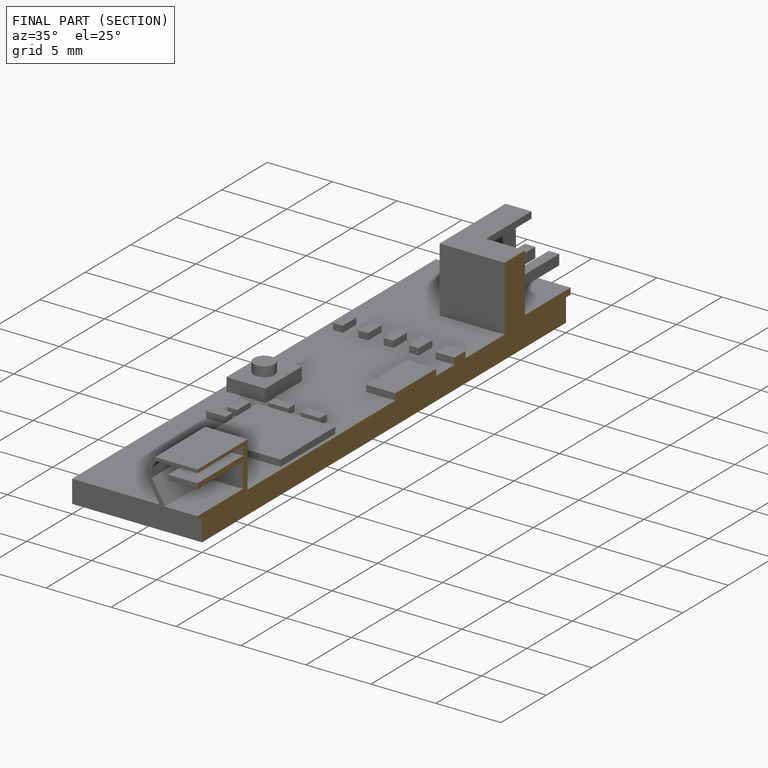
[diagram: finished part — half-section view (interior)]
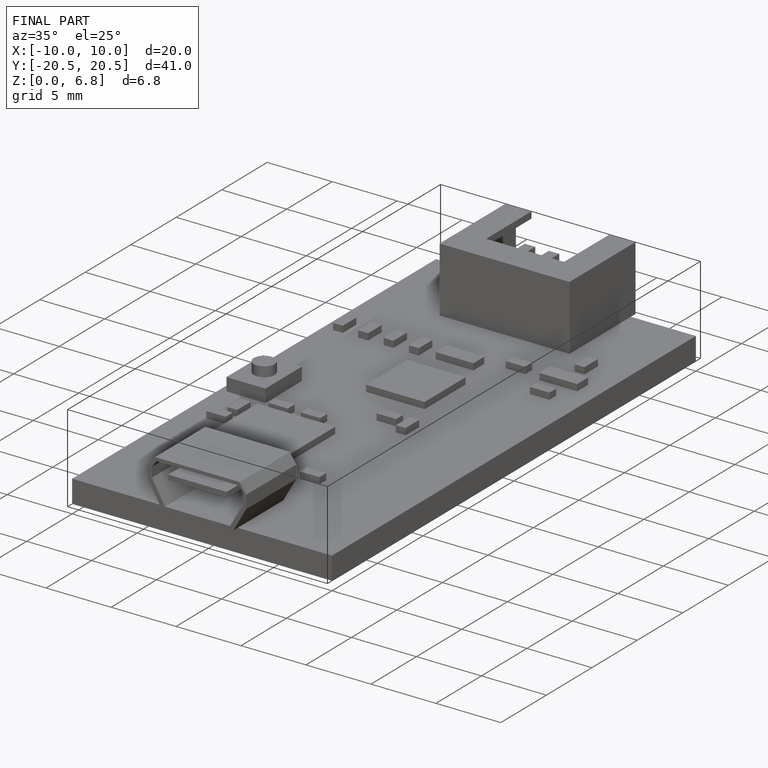
[diagram: finished part — iso view with bounding-box wireframe]
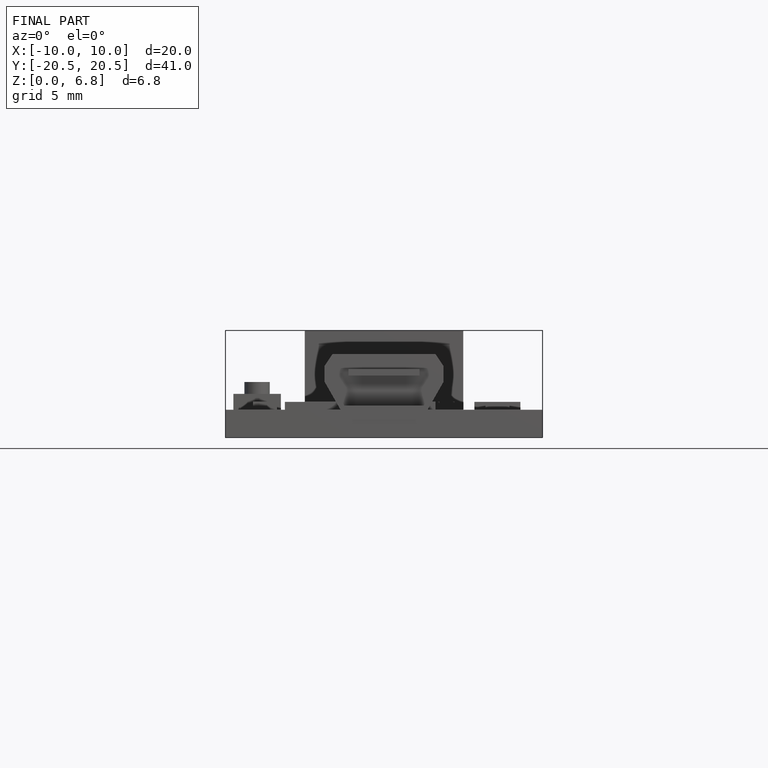
[diagram: finished part — front view with bounding-box wireframe]
